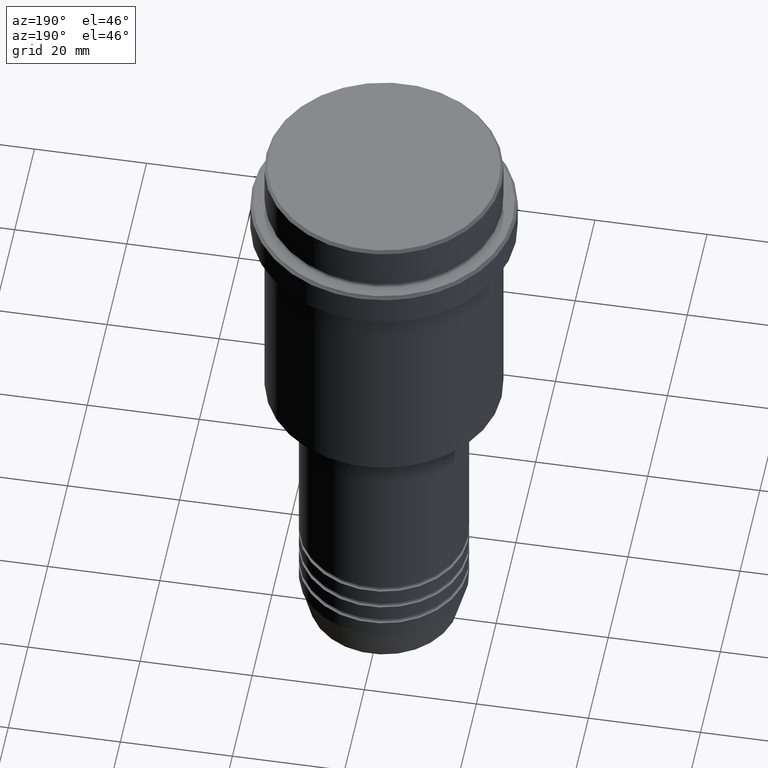
[diagram: clean part render]
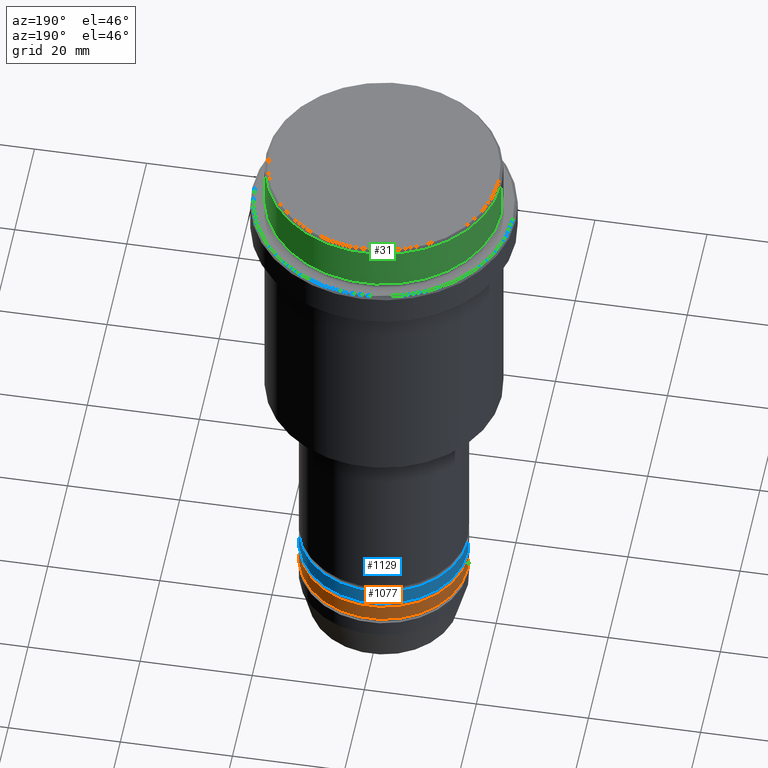
[diagram: same view with three faces highlighted in distinct colors, each labeled with its STEP entity id]
A machine part, auxiliary view with three faces highlighted in distinct colors.
Their STEP definitions:

[orange] entity #1077 — the highlighted cylindrical surface (partial cylindrical patch) has radius 15 mm, axis along (-0, -0, 1).
#6 = DIRECTION ( 'NONE',  ( -0.000000000000000000, -0.000000000000000000, 1.000000000000000000 ) ) ;
#62 = CARTESIAN_POINT ( 'NONE',  ( -15.00000000000000000, 1.836970198721029589E-15, -98.99999999999988631 ) ) ;
#83 = VERTEX_POINT ( 'NONE', #690 ) ;
#112 = DIRECTION ( 'NONE',  ( 1.000000000000000000, 0.000000000000000000, 0.000000000000000000 ) ) ;
#163 = CARTESIAN_POINT ( 'NONE',  ( -15.00000000000000000, 1.836970198721029589E-15, -95.99999999999988631 ) ) ;
#166 = VERTEX_POINT ( 'NONE', #1282 ) ;
#177 = ORIENTED_EDGE ( 'NONE', *, *, #1004, .T. ) ;
#233 = DIRECTION ( 'NONE',  ( -0.000000000000000000, -0.000000000000000000, 1.000000000000000000 ) ) ;
#240 = VERTEX_POINT ( 'NONE', #62 ) ;
#277 = CARTESIAN_POINT ( 'NONE',  ( 0.000000000000000000, 0.000000000000000000, -95.99999999999988631 ) ) ;
#408 = EDGE_CURVE ( 'NONE', #83, #713, #1095, .T. ) ;
#432 = ORIENTED_EDGE ( 'NONE', *, *, #770, .F. ) ;
#437 = ORIENTED_EDGE ( 'NONE', *, *, #460, .T. ) ;
#460 = EDGE_CURVE ( 'NONE', #240, #713, #1030, .T. ) ;
#464 = AXIS2_PLACEMENT_3D ( 'NONE', #277, #942, #473 ) ;
#473 = DIRECTION ( 'NONE',  ( 1.000000000000000000, 0.000000000000000000, 0.000000000000000000 ) ) ;
#483 = LINE ( 'NONE', #1353, #1072 ) ;
#527 = CYLINDRICAL_SURFACE ( 'NONE', #766, 15.00000000000000000 ) ;
#659 = FACE_OUTER_BOUND ( 'NONE', #898, .T. ) ;
#665 = DIRECTION ( 'NONE',  ( 1.000000000000000000, 0.000000000000000000, 0.000000000000000000 ) ) ;
#690 = CARTESIAN_POINT ( 'NONE',  ( 15.00000000000000000, 0.000000000000000000, -95.99999999999988631 ) ) ;
#703 = ORIENTED_EDGE ( 'NONE', *, *, #408, .F. ) ;
#713 = VERTEX_POINT ( 'NONE', #163 ) ;
#766 = AXIS2_PLACEMENT_3D ( 'NONE', #1224, #233, #665 ) ;
#770 = EDGE_CURVE ( 'NONE', #166, #83, #483, .T. ) ;
#821 = AXIS2_PLACEMENT_3D ( 'NONE', #881, #6, #112 ) ;
#844 = CIRCLE ( 'NONE', #821, 15.00000000000000000 ) ;
#881 = CARTESIAN_POINT ( 'NONE',  ( 0.000000000000000000, 0.000000000000000000, -98.99999999999988631 ) ) ;
#898 = EDGE_LOOP ( 'NONE', ( #177, #437, #703, #432 ) ) ;
#915 = VECTOR ( 'NONE', #1365, 1000.000000000000000 ) ;
#934 = CARTESIAN_POINT ( 'NONE',  ( -15.00000000000000000, 1.836970198721029589E-15, 0.000000000000000000 ) ) ;
#942 = DIRECTION ( 'NONE',  ( -0.000000000000000000, -0.000000000000000000, 1.000000000000000000 ) ) ;
#1004 = EDGE_CURVE ( 'NONE', #166, #240, #844, .T. ) ;
#1030 = LINE ( 'NONE', #934, #915 ) ;
#1072 = VECTOR ( 'NONE', #1341, 1000.000000000000000 ) ;
#1077 = ADVANCED_FACE ( 'NONE', ( #659 ), #527, .T. ) ;
#1095 = CIRCLE ( 'NONE', #464, 15.00000000000000000 ) ;
#1224 = CARTESIAN_POINT ( 'NONE',  ( 0.000000000000000000, 0.000000000000000000, 0.000000000000000000 ) ) ;
#1282 = CARTESIAN_POINT ( 'NONE',  ( 15.00000000000000000, 0.000000000000000000, -98.99999999999988631 ) ) ;
#1341 = DIRECTION ( 'NONE',  ( -0.000000000000000000, -0.000000000000000000, 1.000000000000000000 ) ) ;
#1353 = CARTESIAN_POINT ( 'NONE',  ( 15.00000000000000000, 0.000000000000000000, 0.000000000000000000 ) ) ;
#1365 = DIRECTION ( 'NONE',  ( -0.000000000000000000, -0.000000000000000000, 1.000000000000000000 ) ) ;

[blue] entity #1129 — the highlighted cylindrical surface (partial cylindrical patch) has radius 15 mm, axis along (-0, -0, 1).
#16 = VERTEX_POINT ( 'NONE', #573 ) ;
#43 = DIRECTION ( 'NONE',  ( 1.000000000000000000, 0.000000000000000000, 0.000000000000000000 ) ) ;
#125 = ORIENTED_EDGE ( 'NONE', *, *, #495, .F. ) ;
#143 = LINE ( 'NONE', #796, #1213 ) ;
#148 = CARTESIAN_POINT ( 'NONE',  ( 0.000000000000000000, 0.000000000000000000, -91.99999999999988631 ) ) ;
#153 = DIRECTION ( 'NONE',  ( 1.000000000000000000, 0.000000000000000000, 0.000000000000000000 ) ) ;
#154 = CIRCLE ( 'NONE', #963, 15.00000000000000000 ) ;
#190 = CARTESIAN_POINT ( 'NONE',  ( 15.00000000000000000, 0.000000000000000000, -91.99999999999988631 ) ) ;
#257 = CARTESIAN_POINT ( 'NONE',  ( 0.000000000000000000, 0.000000000000000000, -94.99999999999988631 ) ) ;
#268 = VECTOR ( 'NONE', #380, 1000.000000000000000 ) ;
#308 = AXIS2_PLACEMENT_3D ( 'NONE', #148, #586, #577 ) ;
#369 = DIRECTION ( 'NONE',  ( -0.000000000000000000, -0.000000000000000000, 1.000000000000000000 ) ) ;
#380 = DIRECTION ( 'NONE',  ( -0.000000000000000000, -0.000000000000000000, 1.000000000000000000 ) ) ;
#410 = ORIENTED_EDGE ( 'NONE', *, *, #475, .T. ) ;
#456 = CARTESIAN_POINT ( 'NONE',  ( 0.000000000000000000, 0.000000000000000000, 0.000000000000000000 ) ) ;
#475 = EDGE_CURVE ( 'NONE', #16, #1073, #143, .T. ) ;
#495 = EDGE_CURVE ( 'NONE', #838, #1073, #557, .T. ) ;
#504 = LINE ( 'NONE', #1148, #268 ) ;
#556 = CYLINDRICAL_SURFACE ( 'NONE', #985, 15.00000000000000000 ) ;
#557 = CIRCLE ( 'NONE', #308, 15.00000000000000000 ) ;
#566 = FACE_OUTER_BOUND ( 'NONE', #1087, .T. ) ;
#573 = CARTESIAN_POINT ( 'NONE',  ( -15.00000000000000000, 1.836970198721029589E-15, -94.99999999999988631 ) ) ;
#577 = DIRECTION ( 'NONE',  ( 1.000000000000000000, 0.000000000000000000, 0.000000000000000000 ) ) ;
#586 = DIRECTION ( 'NONE',  ( -0.000000000000000000, -0.000000000000000000, 1.000000000000000000 ) ) ;
#685 = DIRECTION ( 'NONE',  ( -0.000000000000000000, -0.000000000000000000, 1.000000000000000000 ) ) ;
#796 = CARTESIAN_POINT ( 'NONE',  ( -15.00000000000000000, 1.836970198721029589E-15, 0.000000000000000000 ) ) ;
#801 = VERTEX_POINT ( 'NONE', #1019 ) ;
#838 = VERTEX_POINT ( 'NONE', #190 ) ;
#858 = ORIENTED_EDGE ( 'NONE', *, *, #1145, .T. ) ;
#924 = DIRECTION ( 'NONE',  ( -0.000000000000000000, -0.000000000000000000, 1.000000000000000000 ) ) ;
#963 = AXIS2_PLACEMENT_3D ( 'NONE', #257, #369, #153 ) ;
#985 = AXIS2_PLACEMENT_3D ( 'NONE', #456, #924, #43 ) ;
#1019 = CARTESIAN_POINT ( 'NONE',  ( 15.00000000000000000, 0.000000000000000000, -94.99999999999988631 ) ) ;
#1073 = VERTEX_POINT ( 'NONE', #1101 ) ;
#1087 = EDGE_LOOP ( 'NONE', ( #858, #410, #125, #1309 ) ) ;
#1101 = CARTESIAN_POINT ( 'NONE',  ( -15.00000000000000000, 1.836970198721029589E-15, -91.99999999999988631 ) ) ;
#1129 = ADVANCED_FACE ( 'NONE', ( #566 ), #556, .T. ) ;
#1145 = EDGE_CURVE ( 'NONE', #801, #16, #154, .T. ) ;
#1148 = CARTESIAN_POINT ( 'NONE',  ( 15.00000000000000000, 0.000000000000000000, 0.000000000000000000 ) ) ;
#1213 = VECTOR ( 'NONE', #685, 1000.000000000000000 ) ;
#1304 = EDGE_CURVE ( 'NONE', #801, #838, #504, .T. ) ;
#1309 = ORIENTED_EDGE ( 'NONE', *, *, #1304, .F. ) ;

[green] entity #31 — the highlighted cylindrical surface (partial cylindrical patch) has radius 21 mm, axis along (-0, -0, 1).
#31 = ADVANCED_FACE ( 'NONE', ( #798 ), #773, .T. ) ;
#103 = DIRECTION ( 'NONE',  ( -0.000000000000000000, -0.000000000000000000, 1.000000000000000000 ) ) ;
#214 = ORIENTED_EDGE ( 'NONE', *, *, #1084, .T. ) ;
#245 = AXIS2_PLACEMENT_3D ( 'NONE', #1024, #1223, #1230 ) ;
#300 = CARTESIAN_POINT ( 'NONE',  ( 20.99999999999999645, 0.000000000000000000, -7.999999999999998224 ) ) ;
#302 = CARTESIAN_POINT ( 'NONE',  ( 0.000000000000000000, 0.000000000000000000, -7.999999999999998224 ) ) ;
#327 = VERTEX_POINT ( 'NONE', #300 ) ;
#424 = CIRCLE ( 'NONE', #1260, 20.99999999999999645 ) ;
#446 = AXIS2_PLACEMENT_3D ( 'NONE', #1401, #1201, #1193 ) ;
#499 = EDGE_LOOP ( 'NONE', ( #523, #1287, #214, #666 ) ) ;
#517 = VERTEX_POINT ( 'NONE', #689 ) ;
#523 = ORIENTED_EDGE ( 'NONE', *, *, #925, .T. ) ;
#541 = VECTOR ( 'NONE', #623, 1000.000000000000000 ) ;
#596 = LINE ( 'NONE', #830, #541 ) ;
#623 = DIRECTION ( 'NONE',  ( -0.000000000000000000, -0.000000000000000000, 1.000000000000000000 ) ) ;
#666 = ORIENTED_EDGE ( 'NONE', *, *, #1085, .F. ) ;
#689 = CARTESIAN_POINT ( 'NONE',  ( 20.99999999999999645, 0.000000000000000000, -0.4999999999999935052 ) ) ;
#757 = CARTESIAN_POINT ( 'NONE',  ( -20.99999999999999645, 2.571758278209441267E-15, -0.4999999999999935052 ) ) ;
#773 = CYLINDRICAL_SURFACE ( 'NONE', #245, 20.99999999999999645 ) ;
#798 = FACE_OUTER_BOUND ( 'NONE', #499, .T. ) ;
#830 = CARTESIAN_POINT ( 'NONE',  ( -20.99999999999999645, 2.571758278209441267E-15, 0.000000000000000000 ) ) ;
#925 = EDGE_CURVE ( 'NONE', #327, #994, #424, .T. ) ;
#994 = VERTEX_POINT ( 'NONE', #997 ) ;
#997 = CARTESIAN_POINT ( 'NONE',  ( -20.99999999999999645, 2.571758278209441267E-15, -7.999999999999998224 ) ) ;
#1024 = CARTESIAN_POINT ( 'NONE',  ( 0.000000000000000000, 0.000000000000000000, 0.000000000000000000 ) ) ;
#1035 = VERTEX_POINT ( 'NONE', #757 ) ;
#1074 = CIRCLE ( 'NONE', #446, 20.99999999999999645 ) ;
#1084 = EDGE_CURVE ( 'NONE', #1035, #517, #1074, .T. ) ;
#1085 = EDGE_CURVE ( 'NONE', #327, #517, #1407, .T. ) ;
#1090 = CARTESIAN_POINT ( 'NONE',  ( 20.99999999999999645, 0.000000000000000000, 0.000000000000000000 ) ) ;
#1193 = DIRECTION ( 'NONE',  ( 1.000000000000000000, 0.000000000000000000, 0.000000000000000000 ) ) ;
#1201 = DIRECTION ( 'NONE',  ( 0.000000000000000000, 0.000000000000000000, -1.000000000000000000 ) ) ;
#1223 = DIRECTION ( 'NONE',  ( -0.000000000000000000, -0.000000000000000000, 1.000000000000000000 ) ) ;
#1230 = DIRECTION ( 'NONE',  ( 1.000000000000000000, 0.000000000000000000, 0.000000000000000000 ) ) ;
#1260 = AXIS2_PLACEMENT_3D ( 'NONE', #302, #1389, #1383 ) ;
#1262 = EDGE_CURVE ( 'NONE', #994, #1035, #596, .T. ) ;
#1287 = ORIENTED_EDGE ( 'NONE', *, *, #1262, .T. ) ;
#1326 = VECTOR ( 'NONE', #103, 1000.000000000000000 ) ;
#1383 = DIRECTION ( 'NONE',  ( 1.000000000000000000, 0.000000000000000000, 0.000000000000000000 ) ) ;
#1389 = DIRECTION ( 'NONE',  ( -0.000000000000000000, -0.000000000000000000, 1.000000000000000000 ) ) ;
#1401 = CARTESIAN_POINT ( 'NONE',  ( 0.000000000000000000, 0.000000000000000000, -0.4999999999999935052 ) ) ;
#1407 = LINE ( 'NONE', #1090, #1326 ) ;